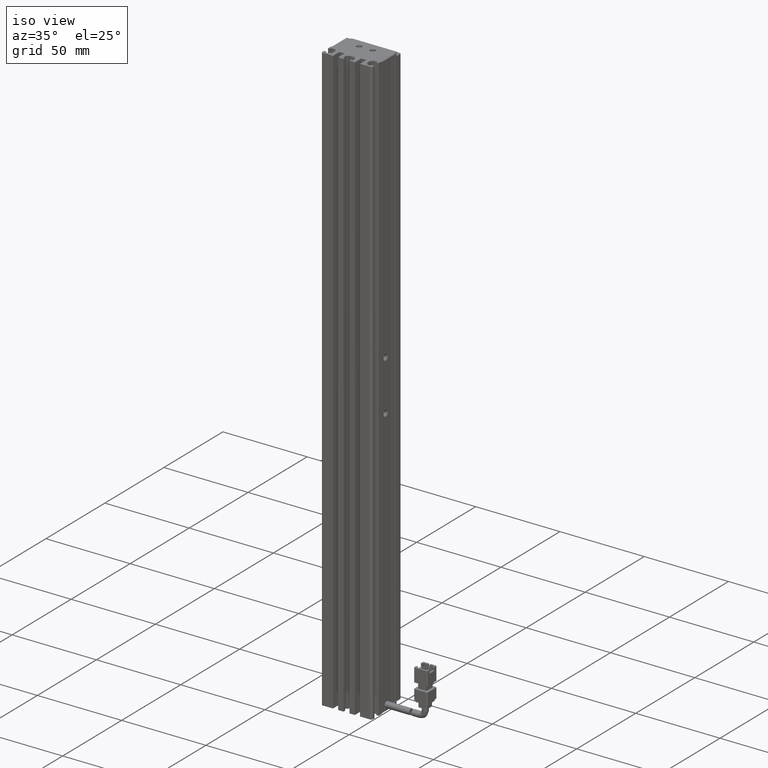
[diagram: clean part render]
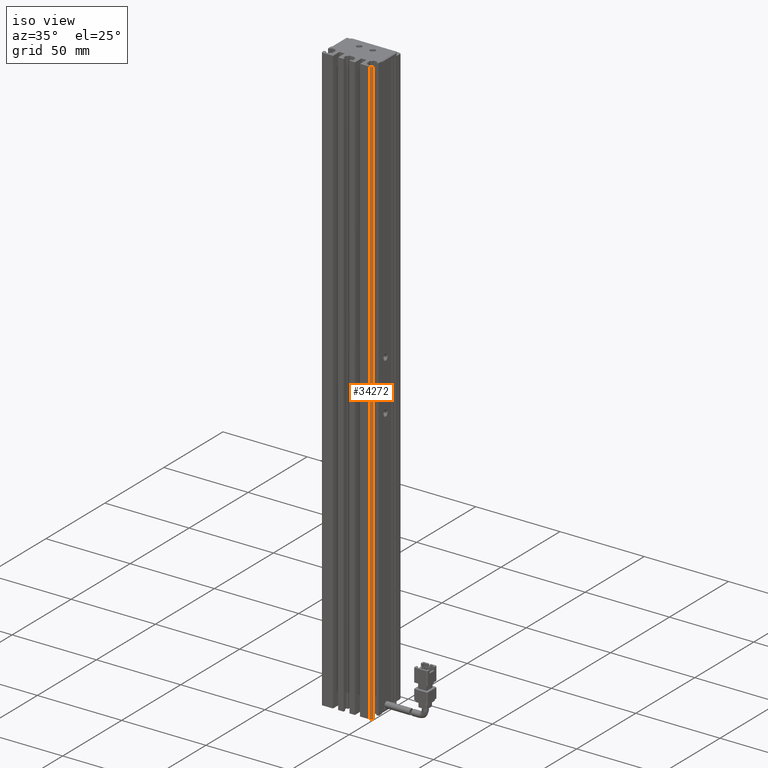
[diagram: same view with one face highlighted and labeled with its STEP entity id]
A machine part, iso view. The second image highlights one B-rep face of the part: STEP entity #34272.
In plain terms, the highlighted cylindrical surface (edge-blend (fillet) strip) has radius 1 mm, axis along (-0, -0, -1).
Its self-contained STEP definition (entity closure, byte-faithful):
#4592 = ORIENTED_EDGE ( 'NONE', *, *, #67133, .T. ) ;
#4768 = EDGE_CURVE ( 'NONE', #56063, #32534, #7778, .T. ) ;
#7755 = LINE ( 'NONE', #26977, #33768 ) ;
#7778 = LINE ( 'NONE', #57957, #59982 ) ;
#9770 = DIRECTION ( 'NONE',  ( -0.0000000000000000000, -0.0000000000000000000, -1.000000000000000000 ) ) ;
#14428 = CARTESIAN_POINT ( 'NONE',  ( 55.92537974683542500, 11.69594479660387000, 60.00000000000001400 ) ) ;
#16454 = ORIENTED_EDGE ( 'NONE', *, *, #4768, .T. ) ;
#18929 = CARTESIAN_POINT ( 'NONE',  ( 54.92537974683542500, 11.69594479660387000, 60.00000000000001400 ) ) ;
#21898 = CARTESIAN_POINT ( 'NONE',  ( 54.92537974683542500, 11.69594479660387000, -290.0000000000000600 ) ) ;
#26977 = CARTESIAN_POINT ( 'NONE',  ( 54.92537974683542500, 10.69594479660386800, 60.00000000000001400 ) ) ;
#27154 = DIRECTION ( 'NONE',  ( -1.000000000000000000, 0.0000000000000000000, 0.0000000000000000000 ) ) ;
#28426 = CIRCLE ( 'NONE', #47529, 1.000000000000000900 ) ;
#29014 = FACE_OUTER_BOUND ( 'NONE', #37590, .T. ) ;
#29475 = DIRECTION ( 'NONE',  ( -0.0000000000000000000, -0.0000000000000000000, -1.000000000000000000 ) ) ;
#31876 = DIRECTION ( 'NONE',  ( 0.0000000000000000000, 0.0000000000000000000, 1.000000000000000000 ) ) ;
#32156 = DIRECTION ( 'NONE',  ( -0.0000000000000000000, -0.0000000000000000000, -1.000000000000000000 ) ) ;
#32534 = VERTEX_POINT ( 'NONE', #14428 ) ;
#33633 = CARTESIAN_POINT ( 'NONE',  ( 55.92537974683542500, 11.69594479660387000, -290.0000000000000600 ) ) ;
#33768 = VECTOR ( 'NONE', #32156, 1000.000000000000000 ) ;
#34272 = ADVANCED_FACE ( 'NONE', ( #29014 ), #36309, .T. ) ;
#36309 = CYLINDRICAL_SURFACE ( 'NONE', #49032, 1.000000000000000900 ) ;
#37590 = EDGE_LOOP ( 'NONE', ( #4592, #67217, #43735, #16454 ) ) ;
#38083 = CIRCLE ( 'NONE', #43792, 1.000000000000000900 ) ;
#39262 = EDGE_CURVE ( 'NONE', #66715, #41053, #7755, .T. ) ;
#40989 = CARTESIAN_POINT ( 'NONE',  ( 54.92537974683542500, 11.69594479660387000, 60.00000000000001400 ) ) ;
#41053 = VERTEX_POINT ( 'NONE', #65875 ) ;
#43735 = ORIENTED_EDGE ( 'NONE', *, *, #61347, .T. ) ;
#43792 = AXIS2_PLACEMENT_3D ( 'NONE', #21898, #58411, #27154 ) ;
#46223 = DIRECTION ( 'NONE',  ( -1.000000000000000000, 0.0000000000000000000, 0.0000000000000000000 ) ) ;
#47529 = AXIS2_PLACEMENT_3D ( 'NONE', #40989, #9770, #46223 ) ;
#49032 = AXIS2_PLACEMENT_3D ( 'NONE', #18929, #29475, #50429 ) ;
#50429 = DIRECTION ( 'NONE',  ( -1.000000000000000000, 0.0000000000000000000, 0.0000000000000000000 ) ) ;
#56063 = VERTEX_POINT ( 'NONE', #33633 ) ;
#56677 = CARTESIAN_POINT ( 'NONE',  ( 54.92537974683542500, 10.69594479660386800, 60.00000000000001400 ) ) ;
#57957 = CARTESIAN_POINT ( 'NONE',  ( 55.92537974683542500, 11.69594479660387000, 60.00000000000001400 ) ) ;
#58411 = DIRECTION ( 'NONE',  ( 0.0000000000000000000, 0.0000000000000000000, 1.000000000000000000 ) ) ;
#59982 = VECTOR ( 'NONE', #31876, 1000.000000000000000 ) ;
#61347 = EDGE_CURVE ( 'NONE', #41053, #56063, #38083, .T. ) ;
#65875 = CARTESIAN_POINT ( 'NONE',  ( 54.92537974683542500, 10.69594479660386800, -290.0000000000000600 ) ) ;
#66715 = VERTEX_POINT ( 'NONE', #56677 ) ;
#67133 = EDGE_CURVE ( 'NONE', #32534, #66715, #28426, .T. ) ;
#67217 = ORIENTED_EDGE ( 'NONE', *, *, #39262, .T. ) ;